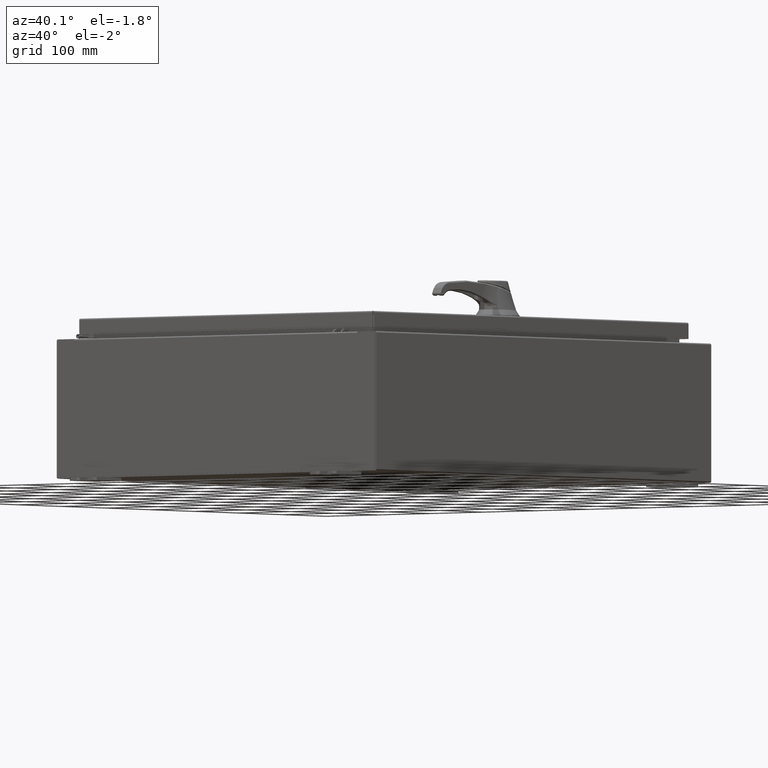
[diagram: clean part render]
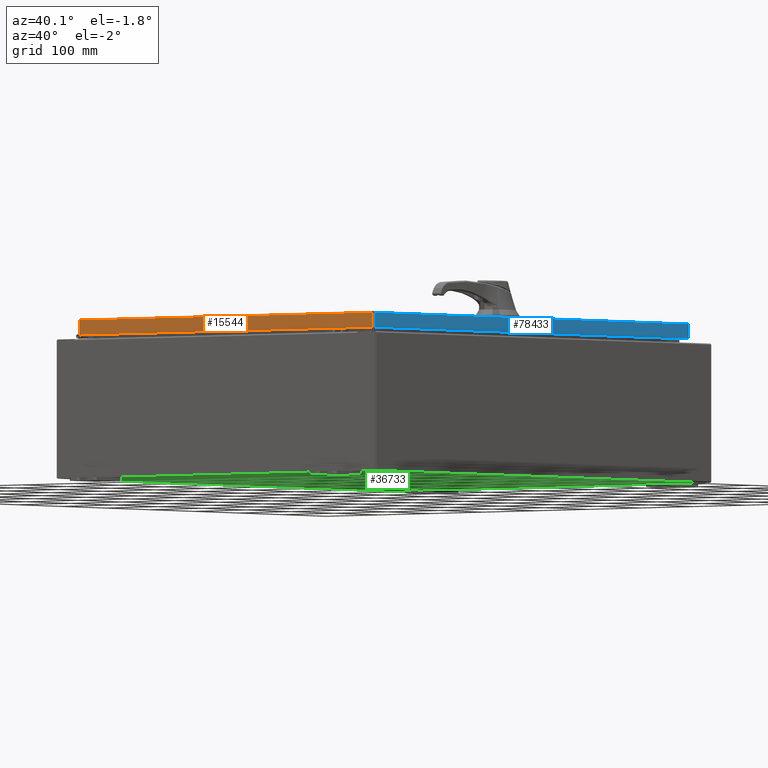
[diagram: same view with three faces highlighted in distinct colors, each labeled with its STEP entity id]
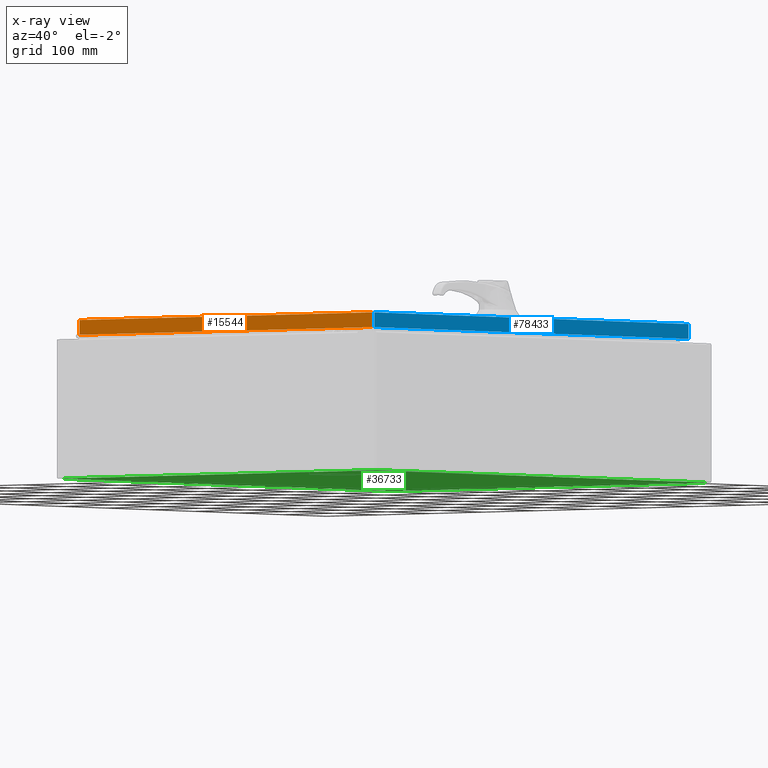
[diagram: x-ray of the same camera — body ghosted, the three highlighted faces saturated]
A machine part, auxiliary view with three faces highlighted in distinct colors.
The next image is the same camera in x-ray (body ghosted, the three faces saturated) — at least one of them is partly hidden behind the body in this view.
Their STEP definitions:

[orange] entity #15544 — the highlighted planar face has unit normal (0, 1, -0).
#524 = DIRECTION ( 'NONE',  ( -1.000000000000000000, 9.864047639156033700E-017, 1.233005954894504400E-016 ) ) ;
#3665 = CARTESIAN_POINT ( 'NONE',  ( 11.07799999999999900, -14.09400000000000100, -0.08770000000000226200 ) ) ;
#5286 = EDGE_LOOP ( 'NONE', ( #11411, #52448, #109754, #98754 ) ) ;
#6079 = VECTOR ( 'NONE', #58287, 39.37007874015748100 ) ;
#8290 = CARTESIAN_POINT ( 'NONE',  ( 10.98915786437624400, -14.09400000000000100, -0.08770000000000226200 ) ) ;
#11411 = ORIENTED_EDGE ( 'NONE', *, *, #63805, .F. ) ;
#12767 = DIRECTION ( 'NONE',  ( 1.000000000000000000, -9.864047639156004100E-017, -7.444398091725593800E-046 ) ) ;
#13147 = CARTESIAN_POINT ( 'NONE',  ( 10.98915786437626900, -14.09400000000000100, -0.07469999999999980800 ) ) ;
#15544 = ADVANCED_FACE ( 'NONE', ( #61643 ), #89173, .F. ) ;
#17852 = EDGE_CURVE ( 'NONE', #88890, #48258, #78289, .T. ) ;
#28901 = CARTESIAN_POINT ( 'NONE',  ( -10.98915786437626900, -14.09399999999999900, 3.595274007335028100E-014 ) ) ;
#44057 = VECTOR ( 'NONE', #524, 39.37007874015748100 ) ;
#44104 = DIRECTION ( 'NONE',  ( 9.864047639156001700E-017, 1.000000000000000000, -2.532419924601866100E-015 ) ) ;
#48258 = VERTEX_POINT ( 'NONE', #77569 ) ;
#52448 = ORIENTED_EDGE ( 'NONE', *, *, #107071, .T. ) ;
#58287 = DIRECTION ( 'NONE',  ( 0.0000000000000000000, -2.532419924601866100E-015, -1.000000000000000000 ) ) ;
#60849 = VERTEX_POINT ( 'NONE', #97326 ) ;
#61643 = FACE_OUTER_BOUND ( 'NONE', #5286, .T. ) ;
#63805 = EDGE_CURVE ( 'NONE', #60849, #88890, #94440, .T. ) ;
#65190 = DIRECTION ( 'NONE',  ( 0.0000000000000000000, -2.532419924601866100E-015, -1.000000000000000000 ) ) ;
#65251 = LINE ( 'NONE', #99825, #44057 ) ;
#67657 = LINE ( 'NONE', #28901, #91740 ) ;
#77569 = CARTESIAN_POINT ( 'NONE',  ( 10.98915786437626900, -14.09400000000000300, -0.9376999999999997600 ) ) ;
#77686 = CARTESIAN_POINT ( 'NONE',  ( -10.98915786437626700, -14.09400000000000100, -0.9376999999999970900 ) ) ;
#78289 = LINE ( 'NONE', #13147, #6079 ) ;
#79844 = EDGE_CURVE ( 'NONE', #48258, #95272, #65251, .T. ) ;
#88890 = VERTEX_POINT ( 'NONE', #8290 ) ;
#89173 = PLANE ( 'NONE',  #95785 ) ;
#91631 = VECTOR ( 'NONE', #12767, 39.37007874015748100 ) ;
#91740 = VECTOR ( 'NONE', #65190, 39.37007874015748100 ) ;
#94440 = LINE ( 'NONE', #3665, #91631 ) ;
#95272 = VERTEX_POINT ( 'NONE', #77686 ) ;
#95785 = AXIS2_PLACEMENT_3D ( 'NONE', #116036, #44104, #107311 ) ;
#97326 = CARTESIAN_POINT ( 'NONE',  ( -10.98915786437626700, -14.09399999999999900, -0.08770000000000226200 ) ) ;
#98754 = ORIENTED_EDGE ( 'NONE', *, *, #17852, .F. ) ;
#99825 = CARTESIAN_POINT ( 'NONE',  ( 11.07799999999999900, -14.09400000000000300, -0.9376999999999997600 ) ) ;
#107071 = EDGE_CURVE ( 'NONE', #60849, #95272, #67657, .T. ) ;
#107311 = DIRECTION ( 'NONE',  ( 0.0000000000000000000, 2.532419924601866100E-015, 1.000000000000000000 ) ) ;
#109754 = ORIENTED_EDGE ( 'NONE', *, *, #79844, .F. ) ;
#116036 = CARTESIAN_POINT ( 'NONE',  ( -1.390238874262646700E-015, -14.09399999999999900, 3.595274007335028100E-014 ) ) ;

[blue] entity #78433 — the highlighted planar face has unit normal (1, 0, 0).
#4204 = DIRECTION ( 'NONE',  ( 2.532419924601866100E-015, 0.0000000000000000000, -1.000000000000000000 ) ) ;
#10750 = EDGE_CURVE ( 'NONE', #48456, #97453, #11182, .T. ) ;
#11128 = CARTESIAN_POINT ( 'NONE',  ( 11.07799999999999900, -14.00515786437626900, -0.07469999999999980800 ) ) ;
#11182 = LINE ( 'NONE', #115601, #35324 ) ;
#11961 = VERTEX_POINT ( 'NONE', #102052 ) ;
#12931 = CARTESIAN_POINT ( 'NONE',  ( 11.07799999999999900, 0.0000000000000000000, 2.831496158075105700E-014 ) ) ;
#17510 = CARTESIAN_POINT ( 'NONE',  ( 11.07800000000000300, -14.09399999999999900, -0.9376999999999997600 ) ) ;
#21594 = FACE_OUTER_BOUND ( 'NONE', #58119, .T. ) ;
#25010 = CARTESIAN_POINT ( 'NONE',  ( 11.07799999999999900, 14.00515786437626500, -0.08770000000000008300 ) ) ;
#27932 = CARTESIAN_POINT ( 'NONE',  ( 11.07799999999999900, 14.00515786437626900, 1.261124562427948200E-013 ) ) ;
#31953 = AXIS2_PLACEMENT_3D ( 'NONE', #12931, #58467, #4204 ) ;
#32414 = CARTESIAN_POINT ( 'NONE',  ( 11.07800000000000300, -14.00515786437626200, -0.9376999999999997600 ) ) ;
#34865 = EDGE_CURVE ( 'NONE', #11961, #48456, #65542, .T. ) ;
#35324 = VECTOR ( 'NONE', #104905, 39.37007874015748100 ) ;
#36990 = DIRECTION ( 'NONE',  ( -2.532419924601866100E-015, -6.982962677686265900E-015, 1.000000000000000000 ) ) ;
#40465 = LINE ( 'NONE', #17510, #109771 ) ;
#42408 = VECTOR ( 'NONE', #65326, 39.37007874015748100 ) ;
#45858 = ORIENTED_EDGE ( 'NONE', *, *, #112217, .F. ) ;
#48456 = VERTEX_POINT ( 'NONE', #25010 ) ;
#49503 = CARTESIAN_POINT ( 'NONE',  ( 11.07799999999999900, -14.00515786437626900, -0.08770000000000008300 ) ) ;
#58119 = EDGE_LOOP ( 'NONE', ( #45858, #73295, #99579, #73601 ) ) ;
#58467 = DIRECTION ( 'NONE',  ( 1.000000000000000000, 0.0000000000000000000, 2.532419924601866100E-015 ) ) ;
#65326 = DIRECTION ( 'NONE',  ( -2.532419924601866100E-015, -6.982962677686265900E-015, 1.000000000000000000 ) ) ;
#65521 = EDGE_CURVE ( 'NONE', #11961, #110416, #40465, .T. ) ;
#65542 = LINE ( 'NONE', #27932, #110809 ) ;
#69324 = LINE ( 'NONE', #11128, #42408 ) ;
#73295 = ORIENTED_EDGE ( 'NONE', *, *, #65521, .F. ) ;
#73601 = ORIENTED_EDGE ( 'NONE', *, *, #10750, .T. ) ;
#78433 = ADVANCED_FACE ( 'NONE', ( #21594 ), #112561, .T. ) ;
#97453 = VERTEX_POINT ( 'NONE', #49503 ) ;
#99579 = ORIENTED_EDGE ( 'NONE', *, *, #34865, .T. ) ;
#102052 = CARTESIAN_POINT ( 'NONE',  ( 11.07800000000000300, 14.00515786437627200, -0.9376999999999997600 ) ) ;
#104905 = DIRECTION ( 'NONE',  ( 0.0000000000000000000, -1.000000000000000000, 0.0000000000000000000 ) ) ;
#109771 = VECTOR ( 'NONE', #116732, 39.37007874015748100 ) ;
#110416 = VERTEX_POINT ( 'NONE', #32414 ) ;
#110809 = VECTOR ( 'NONE', #36990, 39.37007874015748100 ) ;
#112217 = EDGE_CURVE ( 'NONE', #110416, #97453, #69324, .T. ) ;
#112561 = PLANE ( 'NONE',  #31953 ) ;
#115601 = CARTESIAN_POINT ( 'NONE',  ( 11.07799999999999900, 0.0000000000000000000, -0.08770000000000008300 ) ) ;
#116732 = DIRECTION ( 'NONE',  ( 0.0000000000000000000, -1.000000000000000000, 0.0000000000000000000 ) ) ;

[green] entity #36733 — the highlighted planar face has unit normal (0, 0, -1).
#913 = CARTESIAN_POINT ( 'NONE',  ( 11.91229999999999700, 14.92530000000000000, -0.07470000000000226500 ) ) ;
#6469 = VECTOR ( 'NONE', #115759, 39.37007874015748100 ) ;
#10049 = DIRECTION ( 'NONE',  ( -0.0000000000000000000, -1.000000000000000000, 8.208677865577646300E-017 ) ) ;
#20770 = CARTESIAN_POINT ( 'NONE',  ( -12.00000000000000500, 14.92530000000000000, -0.07470000000000000300 ) ) ;
#25281 = CARTESIAN_POINT ( 'NONE',  ( -11.91230000000000500, -14.92530000000000000, -0.07469999999999994700 ) ) ;
#28146 = LINE ( 'NONE', #913, #73368 ) ;
#30951 = VERTEX_POINT ( 'NONE', #85943 ) ;
#31151 = EDGE_CURVE ( 'NONE', #73615, #30951, #88711, .T. ) ;
#36733 = ADVANCED_FACE ( 'NONE', ( #86558 ), #96945, .T. ) ;
#47141 = EDGE_CURVE ( 'NONE', #73615, #70632, #57470, .T. ) ;
#49220 = EDGE_LOOP ( 'NONE', ( #93745, #110993, #71795, #52360 ) ) ;
#51911 = DIRECTION ( 'NONE',  ( 0.0000000000000000000, 0.0000000000000000000, -1.000000000000000000 ) ) ;
#52360 = ORIENTED_EDGE ( 'NONE', *, *, #62949, .T. ) ;
#57387 = CARTESIAN_POINT ( 'NONE',  ( -11.91230000000000500, -14.92530000000000000, -0.07469999999999994700 ) ) ;
#57470 = LINE ( 'NONE', #25281, #6469 ) ;
#61125 = CARTESIAN_POINT ( 'NONE',  ( -11.91230000000000500, 14.92530000000000000, -0.07470000000000000300 ) ) ;
#61437 = CARTESIAN_POINT ( 'NONE',  ( -12.00000000000000500, -14.92530000000000000, -0.07470000000000000300 ) ) ;
#61851 = VECTOR ( 'NONE', #79593, 39.37007874015748100 ) ;
#62949 = EDGE_CURVE ( 'NONE', #97597, #30951, #28146, .T. ) ;
#67576 = VECTOR ( 'NONE', #93104, 39.37007874015748100 ) ;
#70632 = VERTEX_POINT ( 'NONE', #61125 ) ;
#71795 = ORIENTED_EDGE ( 'NONE', *, *, #90644, .F. ) ;
#73368 = VECTOR ( 'NONE', #10049, 39.37007874015748100 ) ;
#73615 = VERTEX_POINT ( 'NONE', #57387 ) ;
#79593 = DIRECTION ( 'NONE',  ( 1.000000000000000000, 0.0000000000000000000, 0.0000000000000000000 ) ) ;
#85943 = CARTESIAN_POINT ( 'NONE',  ( 11.91229999999998800, -14.92530000000000000, -0.07470000000000000300 ) ) ;
#86558 = FACE_OUTER_BOUND ( 'NONE', #49220, .T. ) ;
#87057 = CARTESIAN_POINT ( 'NONE',  ( 11.91229999999999700, 14.92530000000000000, -0.07470000000000226500 ) ) ;
#88711 = LINE ( 'NONE', #61437, #61851 ) ;
#90644 = EDGE_CURVE ( 'NONE', #97597, #70632, #91642, .T. ) ;
#91642 = LINE ( 'NONE', #20770, #67576 ) ;
#93104 = DIRECTION ( 'NONE',  ( -1.000000000000000000, -0.0000000000000000000, -0.0000000000000000000 ) ) ;
#93745 = ORIENTED_EDGE ( 'NONE', *, *, #31151, .F. ) ;
#96945 = PLANE ( 'NONE',  #108675 ) ;
#97597 = VERTEX_POINT ( 'NONE', #87057 ) ;
#106007 = CARTESIAN_POINT ( 'NONE',  ( 0.0000000000000000000, 0.0000000000000000000, -0.07470000000000000300 ) ) ;
#108675 = AXIS2_PLACEMENT_3D ( 'NONE', #106007, #51911, #115134 ) ;
#110993 = ORIENTED_EDGE ( 'NONE', *, *, #47141, .T. ) ;
#115134 = DIRECTION ( 'NONE',  ( -1.000000000000000000, 0.0000000000000000000, -0.0000000000000000000 ) ) ;
#115759 = DIRECTION ( 'NONE',  ( -0.0000000000000000000, 1.000000000000000000, -0.0000000000000000000 ) ) ;